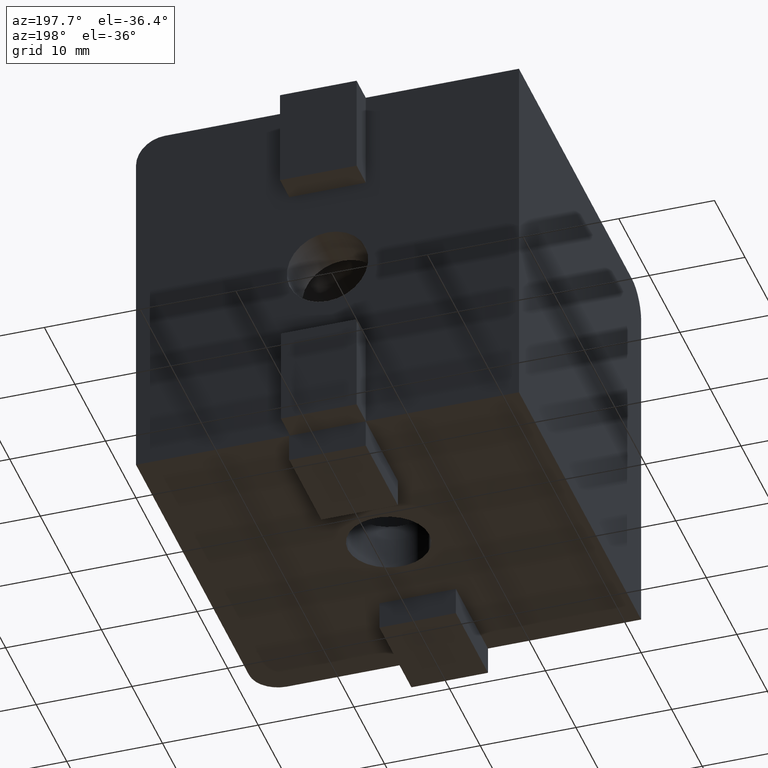
[diagram: clean part render]
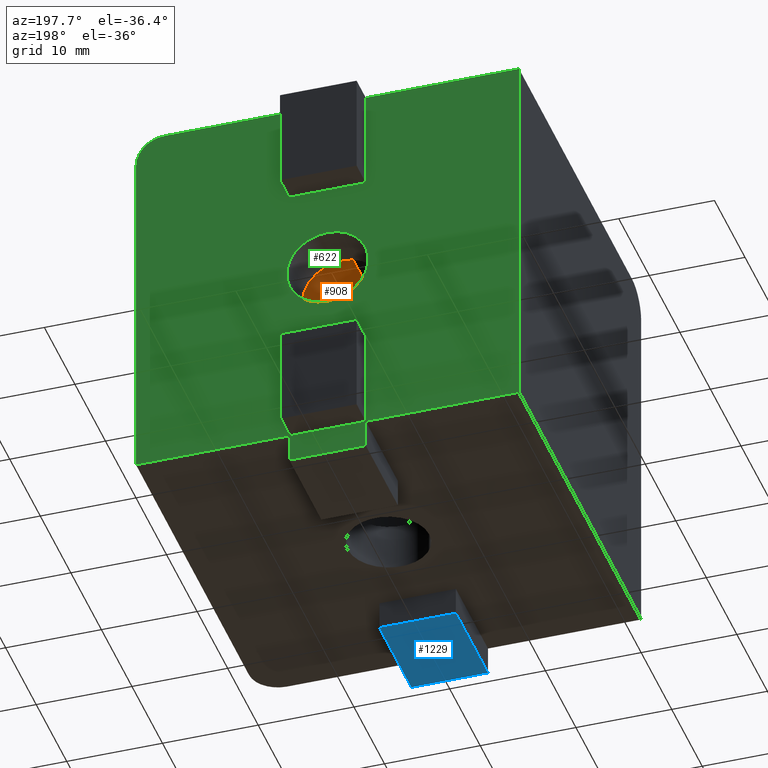
[diagram: same view with three faces highlighted in distinct colors, each labeled with its STEP entity id]
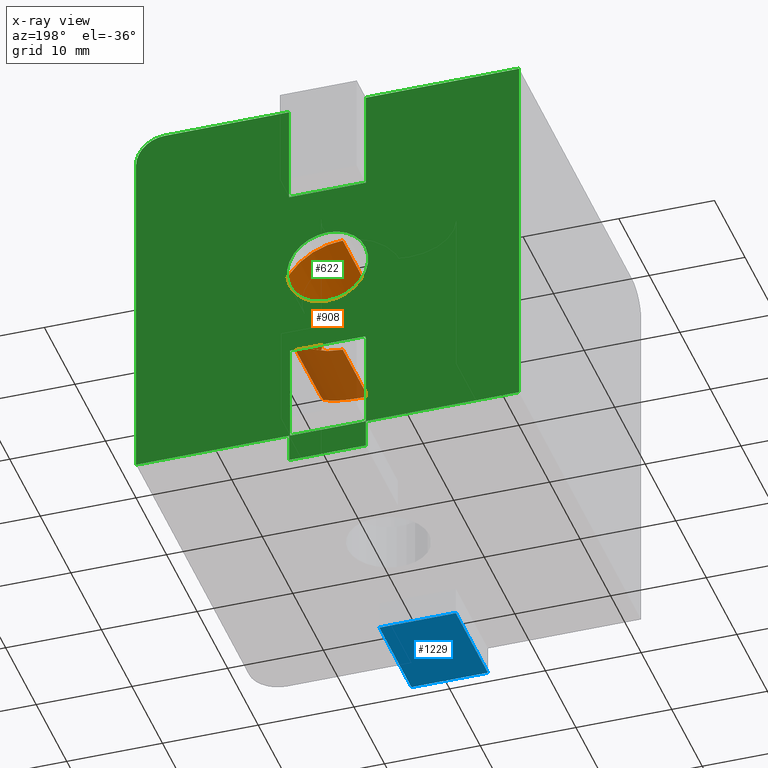
[diagram: x-ray of the same camera — body ghosted, the three highlighted faces saturated]
A machine part, auxiliary view with three faces highlighted in distinct colors.
The next image is the same camera in x-ray (body ghosted, the three faces saturated) — at least one of them is partly hidden behind the body in this view.
Their STEP definitions:

[orange] entity #908 — the highlighted cylindrical surface (partial cylindrical patch) has radius 6.75 mm, axis along (0, 1, 0).
#72=CARTESIAN_POINT('',(0.0,-13.250000000000004,-6.750000000000005));
#73=VERTEX_POINT('',#72);
#88=CARTESIAN_POINT('',(0.0,-4.999999999999998,-6.750000000000005));
#89=VERTEX_POINT('',#88);
#90=CARTESIAN_POINT('',(0.0,-13.250000000000004,-6.750000000000005));
#91=DIRECTION('',(0.0,1.0,0.0));
#92=VECTOR('',#91,8.250000000000007);
#93=LINE('',#90,#92);
#94=EDGE_CURVE('',#73,#89,#93,.T.);
#96=CARTESIAN_POINT('',(0.0,-4.999999999999998,6.750000000000000));
#97=VERTEX_POINT('',#96);
#105=CARTESIAN_POINT('',(0.0,-13.250000000000004,6.750000000000000));
#106=VERTEX_POINT('',#105);
#107=CARTESIAN_POINT('',(0.0,-13.250000000000004,6.750000000000000));
#108=DIRECTION('',(0.0,1.0,0.0));
#109=VECTOR('',#108,8.250000000000007);
#110=LINE('',#107,#109);
#111=EDGE_CURVE('',#106,#97,#110,.T.);
#194=CARTESIAN_POINT('',(6.750000000000000,-20.000000000000004,0.0));
#195=VERTEX_POINT('',#194);
#196=CARTESIAN_POINT('',(0.0,-13.250000000000004,6.750000000000000));
#197=CARTESIAN_POINT('',(3.954058453981617,-13.250000000000004,6.749999999999999));
#198=CARTESIAN_POINT('',(6.749999999999999,-16.045941546018398,3.954058453981599));
#199=CARTESIAN_POINT('',(6.750000000000000,-20.000000000000004,0.0));
#207=(BOUNDED_CURVE()B_SPLINE_CURVE(3,(#196,#197,#198,#199),.UNSPECIFIED.,.F.,.U.)B_SPLINE_CURVE_WITH_KNOTS((4,4),(3.141592653589793,4.712388980384691),.UNSPECIFIED.)CURVE()GEOMETRIC_REPRESENTATION_ITEM()RATIONAL_B_SPLINE_CURVE((1.0,0.804737854124365,0.804737854124365,1.0))REPRESENTATION_ITEM(''));
#208=EDGE_CURVE('',#106,#195,#207,.T.);
#280=CARTESIAN_POINT('',(6.750000000000000,-20.000000000000004,0.0));
#281=CARTESIAN_POINT('',(6.749999999999999,-16.045941546018398,-3.954058453981613));
#282=CARTESIAN_POINT('',(3.954058453981617,-13.250000000000004,-6.749999999999999));
#283=CARTESIAN_POINT('',(0.0,-13.250000000000004,-6.750000000000005));
#291=(BOUNDED_CURVE()B_SPLINE_CURVE(3,(#280,#281,#282,#283),.UNSPECIFIED.,.F.,.U.)B_SPLINE_CURVE_WITH_KNOTS((4,4),(4.712388980384691,6.283185307179585),.UNSPECIFIED.)CURVE()GEOMETRIC_REPRESENTATION_ITEM()RATIONAL_B_SPLINE_CURVE((1.0,0.804737854124365,0.804737854124365,1.0))REPRESENTATION_ITEM(''));
#292=EDGE_CURVE('',#195,#73,#291,.T.);
#882=CARTESIAN_POINT('',(0.0,-4.999999999999998,0.0));
#883=DIRECTION('',(0.0,-1.0,0.0));
#884=DIRECTION('',(0.0,0.0,1.0));
#885=AXIS2_PLACEMENT_3D('',#882,#883,#884);
#886=CIRCLE('',#885,6.749999999999997);
#887=EDGE_CURVE('',#89,#97,#886,.T.);
#896=CARTESIAN_POINT('',(0.0,-20.000000010000001,0.0));
#897=DIRECTION('',(0.0,1.0,0.0));
#898=DIRECTION('',(-1.0,0.0,0.0));
#899=AXIS2_PLACEMENT_3D('',#896,#897,#898);
#900=CYLINDRICAL_SURFACE('',#899,6.749999999999997);
#901=ORIENTED_EDGE('',*,*,#94,.F.);
#902=ORIENTED_EDGE('',*,*,#292,.F.);
#903=ORIENTED_EDGE('',*,*,#208,.F.);
#904=ORIENTED_EDGE('',*,*,#111,.T.);
#905=ORIENTED_EDGE('',*,*,#887,.F.);
#906=EDGE_LOOP('',(#901,#902,#903,#904,#905));
#907=FACE_OUTER_BOUND('',#906,.T.);
#908=ADVANCED_FACE('',(#907),#900,.F.);

[blue] entity #1229 — the highlighted planar face has unit normal (0, 0, 1).
#696=CARTESIAN_POINT('',(-4.000000000000007,-40.000000000000007,-23.0));
#697=VERTEX_POINT('',#696);
#704=CARTESIAN_POINT('',(4.0,-40.000000000000007,-23.0));
#705=VERTEX_POINT('',#704);
#706=CARTESIAN_POINT('',(-4.000000000000007,-40.000000000000007,-23.0));
#707=DIRECTION('',(1.0,0.0,0.0));
#708=VECTOR('',#707,8.000000000000007);
#709=LINE('',#706,#708);
#710=EDGE_CURVE('',#697,#705,#709,.T.);
#1159=CARTESIAN_POINT('',(4.0,-29.500000000000007,-23.0));
#1160=VERTEX_POINT('',#1159);
#1167=CARTESIAN_POINT('',(-4.000000000000007,-29.500000000000007,-23.0));
#1168=VERTEX_POINT('',#1167);
#1169=CARTESIAN_POINT('',(4.0,-29.500000000000007,-23.0));
#1170=DIRECTION('',(-1.0,0.0,0.0));
#1171=VECTOR('',#1170,8.000000000000007);
#1172=LINE('',#1169,#1171);
#1173=EDGE_CURVE('',#1160,#1168,#1172,.T.);
#1191=CARTESIAN_POINT('',(-4.000000000000007,-29.500000000000007,-23.0));
#1192=DIRECTION('',(0.0,-1.0,0.0));
#1193=VECTOR('',#1192,10.500000000000000);
#1194=LINE('',#1191,#1193);
#1195=EDGE_CURVE('',#1168,#697,#1194,.T.);
#1208=CARTESIAN_POINT('',(4.0,-40.000000000000007,-23.0));
#1209=DIRECTION('',(0.0,1.0,0.0));
#1210=VECTOR('',#1209,10.500000000000000);
#1211=LINE('',#1208,#1210);
#1212=EDGE_CURVE('',#705,#1160,#1211,.T.);
#1218=CARTESIAN_POINT('',(-4.400000000000006,-40.525000000000006,-23.0));
#1219=DIRECTION('',(0.0,0.0,1.0));
#1220=DIRECTION('',(1.0,0.0,0.0));
#1221=AXIS2_PLACEMENT_3D('',#1218,#1219,#1220);
#1222=PLANE('',#1221);
#1223=ORIENTED_EDGE('',*,*,#1173,.F.);
#1224=ORIENTED_EDGE('',*,*,#1212,.F.);
#1225=ORIENTED_EDGE('',*,*,#710,.F.);
#1226=ORIENTED_EDGE('',*,*,#1195,.F.);
#1227=EDGE_LOOP('',(#1223,#1224,#1225,#1226));
#1228=FACE_OUTER_BOUND('',#1227,.T.);
#1229=ADVANCED_FACE('',(#1228),#1222,.F.);

[green] entity #622 — the highlighted planar face has unit normal (0, -1, 0).
#135=CARTESIAN_POINT('',(0.0,0.0,4.250000000000000));
#136=VERTEX_POINT('',#135);
#137=CARTESIAN_POINT('',(0.0,0.0,-4.250000000000005));
#138=VERTEX_POINT('',#137);
#139=CARTESIAN_POINT('',(0.0,0.0,0.0));
#140=DIRECTION('',(0.0,-1.0,0.0));
#141=DIRECTION('',(1.0,0.0,0.0));
#142=AXIS2_PLACEMENT_3D('',#139,#140,#141);
#143=CIRCLE('',#142,4.250000000000004);
#144=EDGE_CURVE('',#136,#138,#143,.T.);
#341=CARTESIAN_POINT('',(20.000000000000004,0.0,-20.0));
#342=VERTEX_POINT('',#341);
#398=CARTESIAN_POINT('',(-20.000000000000014,-8.881784E-015,-20.0));
#399=VERTEX_POINT('',#398);
#406=CARTESIAN_POINT('',(-4.000000000000007,-3.552714E-015,-20.0));
#407=VERTEX_POINT('',#406);
#408=CARTESIAN_POINT('',(-4.000000000000007,0.0,-20.0));
#409=DIRECTION('',(-1.0,0.0,0.0));
#410=VECTOR('',#409,16.000000000000007);
#411=LINE('',#408,#410);
#412=EDGE_CURVE('',#407,#399,#411,.T.);
#430=CARTESIAN_POINT('',(4.0,-3.552714E-015,-20.0));
#431=VERTEX_POINT('',#430);
#438=CARTESIAN_POINT('',(20.000000000000004,0.0,-20.0));
#439=DIRECTION('',(-1.0,0.0,0.0));
#440=VECTOR('',#439,16.000000000000004);
#441=LINE('',#438,#440);
#442=EDGE_CURVE('',#342,#431,#441,.T.);
#462=CARTESIAN_POINT('',(3.911610471131233,-3.552714E-015,-20.0));
#463=VERTEX_POINT('',#462);
#464=CARTESIAN_POINT('',(-4.000000000000007,-3.552714E-015,-20.0));
#465=DIRECTION('',(1.0,0.0,0.0));
#466=VECTOR('',#465,7.911610471131240);
#467=LINE('',#464,#466);
#468=EDGE_CURVE('',#407,#463,#467,.T.);
#495=CARTESIAN_POINT('',(-22.000000000000014,0.0,-25.149999999999999));
#496=DIRECTION('',(0.0,-1.0,0.0));
#497=DIRECTION('',(1.0,0.0,0.0));
#498=AXIS2_PLACEMENT_3D('',#495,#496,#497);
#499=PLANE('',#498);
#500=CARTESIAN_POINT('',(17.0,-1.776357E-015,20.0));
#501=VERTEX_POINT('',#500);
#502=CARTESIAN_POINT('',(4.0,-3.552714E-015,20.0));
#503=VERTEX_POINT('',#502);
#504=CARTESIAN_POINT('',(17.0,0.0,20.0));
#505=DIRECTION('',(-1.0,0.0,0.0));
#506=VECTOR('',#505,13.0);
#507=LINE('',#504,#506);
#508=EDGE_CURVE('',#501,#503,#507,.T.);
#509=ORIENTED_EDGE('',*,*,#508,.F.);
#510=CARTESIAN_POINT('',(20.000000000000004,0.0,17.0));
#511=VERTEX_POINT('',#510);
#512=CARTESIAN_POINT('',(17.0,0.0,17.0));
#513=DIRECTION('',(0.0,1.0,0.0));
#514=DIRECTION('',(1.0,0.0,0.0));
#515=AXIS2_PLACEMENT_3D('',#512,#513,#514);
#516=CIRCLE('',#515,2.999999999999999);
#517=EDGE_CURVE('',#501,#511,#516,.T.);
#518=ORIENTED_EDGE('',*,*,#517,.T.);
#519=CARTESIAN_POINT('',(20.000000000000004,0.0,17.0));
#520=DIRECTION('',(0.0,0.0,-1.0));
#521=VECTOR('',#520,37.0);
#522=LINE('',#519,#521);
#523=EDGE_CURVE('',#511,#342,#522,.T.);
#524=ORIENTED_EDGE('',*,*,#523,.T.);
#525=ORIENTED_EDGE('',*,*,#442,.T.);
#526=CARTESIAN_POINT('',(4.0,-3.552714E-015,-23.0));
#527=VERTEX_POINT('',#526);
#528=CARTESIAN_POINT('',(4.0,-3.552714E-015,-23.0));
#529=DIRECTION('',(0.0,0.0,1.0));
#530=VECTOR('',#529,3.0);
#531=LINE('',#528,#530);
#532=EDGE_CURVE('',#527,#431,#531,.T.);
#533=ORIENTED_EDGE('',*,*,#532,.F.);
#534=CARTESIAN_POINT('',(-4.000000000000007,-3.552714E-015,-23.0));
#535=VERTEX_POINT('',#534);
#536=CARTESIAN_POINT('',(-4.000000000000007,-3.552714E-015,-23.0));
#537=DIRECTION('',(1.0,0.0,0.0));
#538=VECTOR('',#537,8.000000000000007);
#539=LINE('',#536,#538);
#540=EDGE_CURVE('',#535,#527,#539,.T.);
#541=ORIENTED_EDGE('',*,*,#540,.F.);
#542=CARTESIAN_POINT('',(-4.000000000000007,-3.552714E-015,-23.0));
#543=DIRECTION('',(0.0,0.0,1.0));
#544=VECTOR('',#543,3.0);
#545=LINE('',#542,#544);
#546=EDGE_CURVE('',#535,#407,#545,.T.);
#547=ORIENTED_EDGE('',*,*,#546,.T.);
#548=ORIENTED_EDGE('',*,*,#468,.T.);
#549=CARTESIAN_POINT('',(3.911610471131233,-3.552714E-015,-9.499999999999996));
#550=VERTEX_POINT('',#549);
#551=CARTESIAN_POINT('',(3.911610471131233,-3.552714E-015,-20.0));
#552=DIRECTION('',(0.0,0.0,1.0));
#553=VECTOR('',#552,10.500000000000004);
#554=LINE('',#551,#553);
#555=EDGE_CURVE('',#463,#550,#554,.T.);
#556=ORIENTED_EDGE('',*,*,#555,.T.);
#557=CARTESIAN_POINT('',(-4.000000000000007,-6.217249E-015,-9.499999999999996));
#558=VERTEX_POINT('',#557);
#559=CARTESIAN_POINT('',(3.911610471131233,-6.217249E-015,-9.500000000000000));
#560=DIRECTION('',(-1.0,0.0,0.0));
#561=VECTOR('',#560,7.911610471131240);
#562=LINE('',#559,#561);
#563=EDGE_CURVE('',#550,#558,#562,.T.);
#564=ORIENTED_EDGE('',*,*,#563,.T.);
#565=CARTESIAN_POINT('',(-4.000000000000007,-6.217249E-015,-9.499999999999996));
#566=DIRECTION('',(0.0,0.0,-1.0));
#567=VECTOR('',#566,10.500000000000004);
#568=LINE('',#565,#567);
#569=EDGE_CURVE('',#558,#407,#568,.T.);
#570=ORIENTED_EDGE('',*,*,#569,.T.);
#571=ORIENTED_EDGE('',*,*,#412,.T.);
#572=CARTESIAN_POINT('',(-20.000000000000014,-8.881784E-015,20.0));
#573=VERTEX_POINT('',#572);
#574=CARTESIAN_POINT('',(-20.000000000000014,-8.881784E-015,20.0));
#575=DIRECTION('',(0.0,0.0,-1.0));
#576=VECTOR('',#575,40.0);
#577=LINE('',#574,#576);
#578=EDGE_CURVE('',#573,#399,#577,.T.);
#579=ORIENTED_EDGE('',*,*,#578,.F.);
#580=CARTESIAN_POINT('',(-4.000000000000007,-6.217249E-015,20.0));
#581=VERTEX_POINT('',#580);
#582=CARTESIAN_POINT('',(-4.000000000000007,0.0,20.0));
#583=DIRECTION('',(-1.0,0.0,0.0));
#584=VECTOR('',#583,16.000000000000007);
#585=LINE('',#582,#584);
#586=EDGE_CURVE('',#581,#573,#585,.T.);
#587=ORIENTED_EDGE('',*,*,#586,.F.);
#588=CARTESIAN_POINT('',(-4.000000000000007,-6.217249E-015,9.500000000000000));
#589=VERTEX_POINT('',#588);
#590=CARTESIAN_POINT('',(-4.000000000000007,-6.217249E-015,9.500000000000000));
#591=DIRECTION('',(0.0,0.0,1.0));
#592=VECTOR('',#591,10.500000000000000);
#593=LINE('',#590,#592);
#594=EDGE_CURVE('',#589,#581,#593,.T.);
#595=ORIENTED_EDGE('',*,*,#594,.F.);
#596=CARTESIAN_POINT('',(4.0,-3.552714E-015,9.500000000000000));
#597=VERTEX_POINT('',#596);
#598=CARTESIAN_POINT('',(4.0,-6.217249E-015,9.500000000000000));
#599=DIRECTION('',(-1.0,0.0,0.0));
#600=VECTOR('',#599,8.000000000000007);
#601=LINE('',#598,#600);
#602=EDGE_CURVE('',#597,#589,#601,.T.);
#603=ORIENTED_EDGE('',*,*,#602,.F.);
#604=CARTESIAN_POINT('',(4.0,-3.552714E-015,20.0));
#605=DIRECTION('',(0.0,0.0,-1.0));
#606=VECTOR('',#605,10.500000000000000);
#607=LINE('',#604,#606);
#608=EDGE_CURVE('',#503,#597,#607,.T.);
#609=ORIENTED_EDGE('',*,*,#608,.F.);
#610=EDGE_LOOP('',(#509,#518,#524,#525,#533,#541,#547,#548,#556,#564,#570,#571,#579,#587,#595,#603,#609));
#611=FACE_OUTER_BOUND('',#610,.T.);
#612=CARTESIAN_POINT('',(0.0,0.0,0.0));
#613=DIRECTION('',(0.0,-1.0,0.0));
#614=DIRECTION('',(1.0,0.0,0.0));
#615=AXIS2_PLACEMENT_3D('',#612,#613,#614);
#616=CIRCLE('',#615,4.250000000000004);
#617=EDGE_CURVE('',#138,#136,#616,.T.);
#618=ORIENTED_EDGE('',*,*,#617,.T.);
#619=ORIENTED_EDGE('',*,*,#144,.T.);
#620=EDGE_LOOP('',(#618,#619));
#621=FACE_BOUND('',#620,.T.);
#622=ADVANCED_FACE('',(#611,#621),#499,.F.);